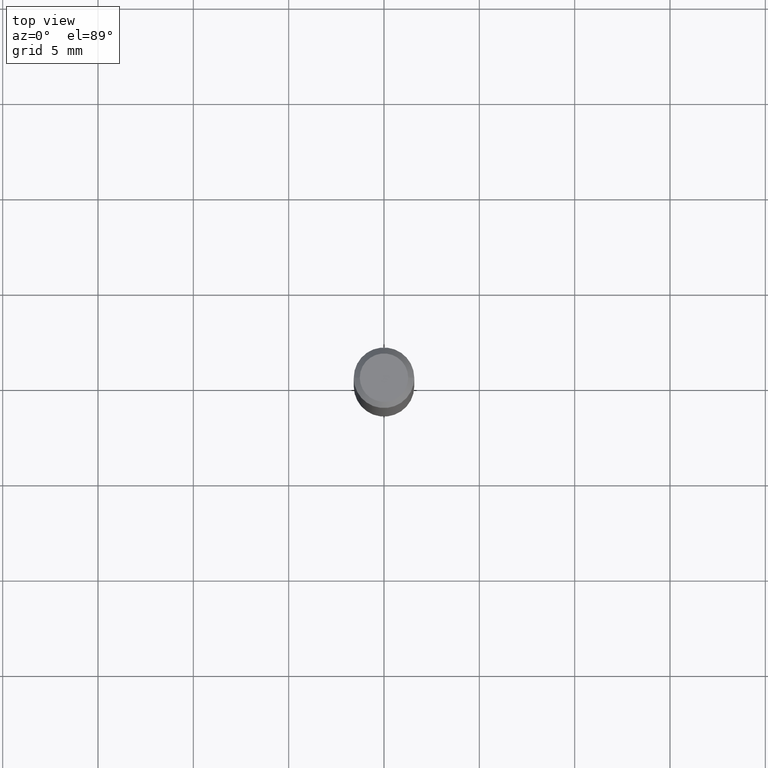
[diagram: clean part render]
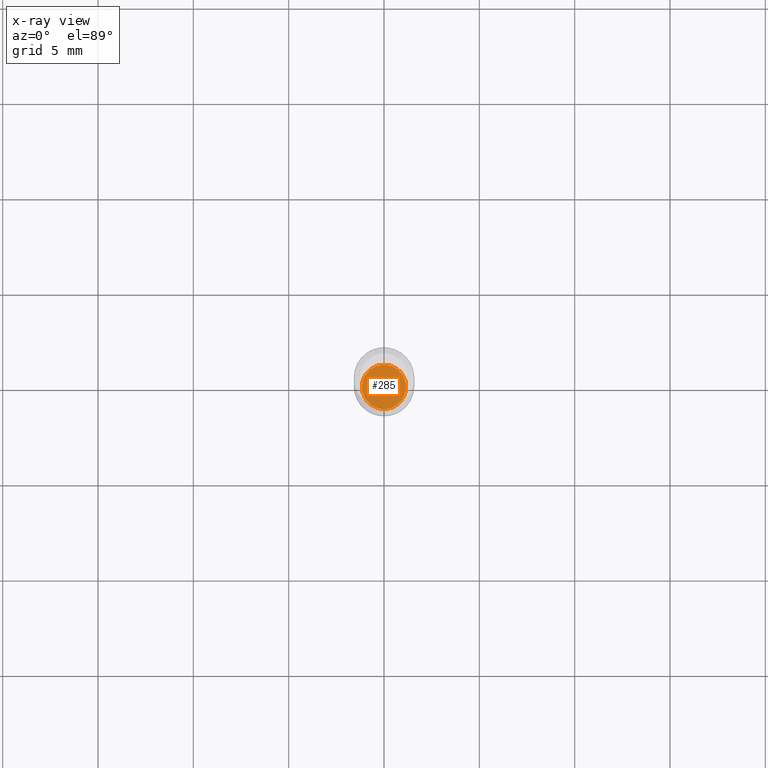
[diagram: x-ray — body ghosted, one internal face saturated and labeled with its STEP entity id]
A machine part, top view, then the same camera in x-ray: the body is ghosted and one INTERNAL B-rep face — a face not visible from any outside direction — is saturated and labeled: STEP entity #285.
In plain terms, the highlighted planar face has unit normal (-0, 0, 1).
Its self-contained STEP definition (entity closure, byte-faithful):
#5 = EDGE_CURVE ( 'NONE', #363, #257, #51, .T. ) ;
#11 = DIRECTION ( 'NONE',  ( 1.000000000000000000, -6.982962677686264344E-15, 0.000000000000000000 ) ) ;
#51 = CIRCLE ( 'NONE', #289, 0.04574999999999999900 ) ;
#150 = CARTESIAN_POINT ( 'NONE',  ( -0.04574999999999999900, -3.512906943943103368E-15, -1.100000000000000089 ) ) ;
#157 = EDGE_CURVE ( 'NONE', #257, #363, #369, .T. ) ;
#191 = AXIS2_PLACEMENT_3D ( 'NONE', #391, #473, #210 ) ;
#202 = CARTESIAN_POINT ( 'NONE',  ( 2.690015686803650369E-29, -3.840629472727460101E-15, -1.100000000000000089 ) ) ;
#210 = DIRECTION ( 'NONE',  ( 1.000000000000000000, -6.982962677686264344E-15, 0.000000000000000000 ) ) ;
#229 = DIRECTION ( 'NONE',  ( -2.445468806185136597E-29, 3.491481338843145583E-15, 1.000000000000000000 ) ) ;
#242 = CARTESIAN_POINT ( 'NONE',  ( 0.04574999999999999900, -4.160100015231607087E-15, -1.100000000000000089 ) ) ;
#257 = VERTEX_POINT ( 'NONE', #150 ) ;
#259 = FACE_OUTER_BOUND ( 'NONE', #329, .T. ) ;
#262 = CARTESIAN_POINT ( 'NONE',  ( 2.690015686803650369E-29, -3.840629472727460101E-15, -1.100000000000000089 ) ) ;
#285 = ADVANCED_FACE ( 'NONE', ( #259 ), #299, .F. ) ;
#289 = AXIS2_PLACEMENT_3D ( 'NONE', #202, #229, #11 ) ;
#296 = DIRECTION ( 'NONE',  ( 1.000000000000000000, -6.982962677686265922E-15, 4.876176775795935793E-29 ) ) ;
#299 = PLANE ( 'NONE',  #312 ) ;
#312 = AXIS2_PLACEMENT_3D ( 'NONE', #262, #404, #296 ) ;
#329 = EDGE_LOOP ( 'NONE', ( #489, #478 ) ) ;
#363 = VERTEX_POINT ( 'NONE', #242 ) ;
#369 = CIRCLE ( 'NONE', #191, 0.04574999999999999900 ) ;
#391 = CARTESIAN_POINT ( 'NONE',  ( 2.690015686803650369E-29, -3.840629472727460101E-15, -1.100000000000000089 ) ) ;
#404 = DIRECTION ( 'NONE',  ( -2.438088387897960049E-29, 3.491481338843145188E-15, 1.000000000000000000 ) ) ;
#473 = DIRECTION ( 'NONE',  ( -2.445468806185136597E-29, 3.491481338843145583E-15, 1.000000000000000000 ) ) ;
#478 = ORIENTED_EDGE ( 'NONE', *, *, #157, .F. ) ;
#489 = ORIENTED_EDGE ( 'NONE', *, *, #5, .F. ) ;